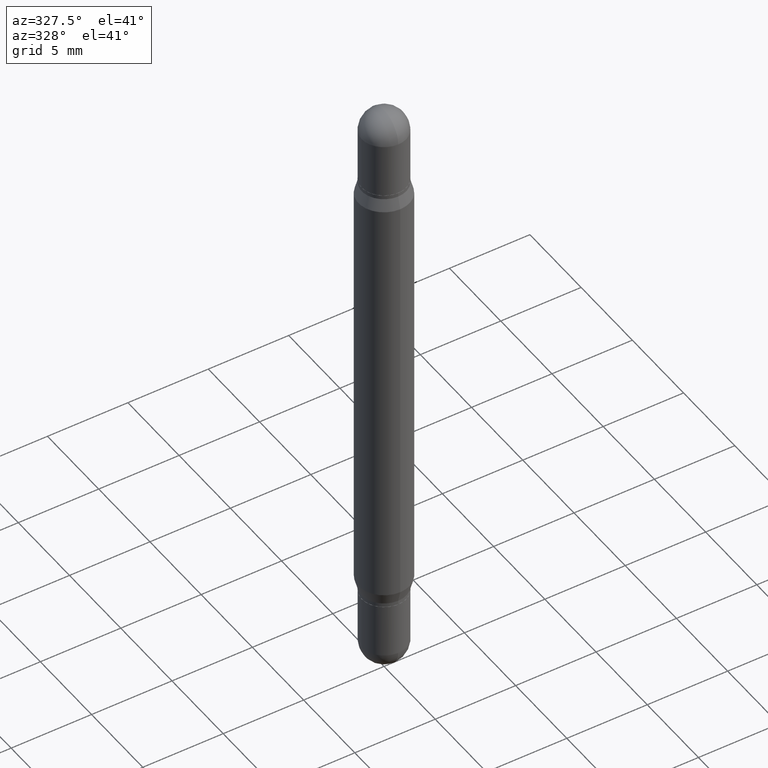
[diagram: clean part render]
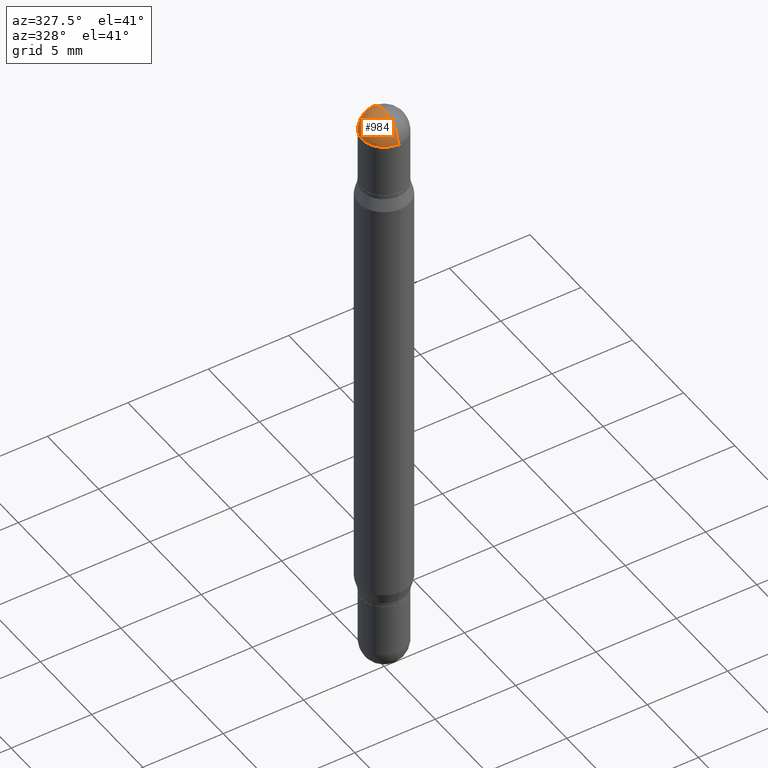
[diagram: same view with one face highlighted and labeled with its STEP entity id]
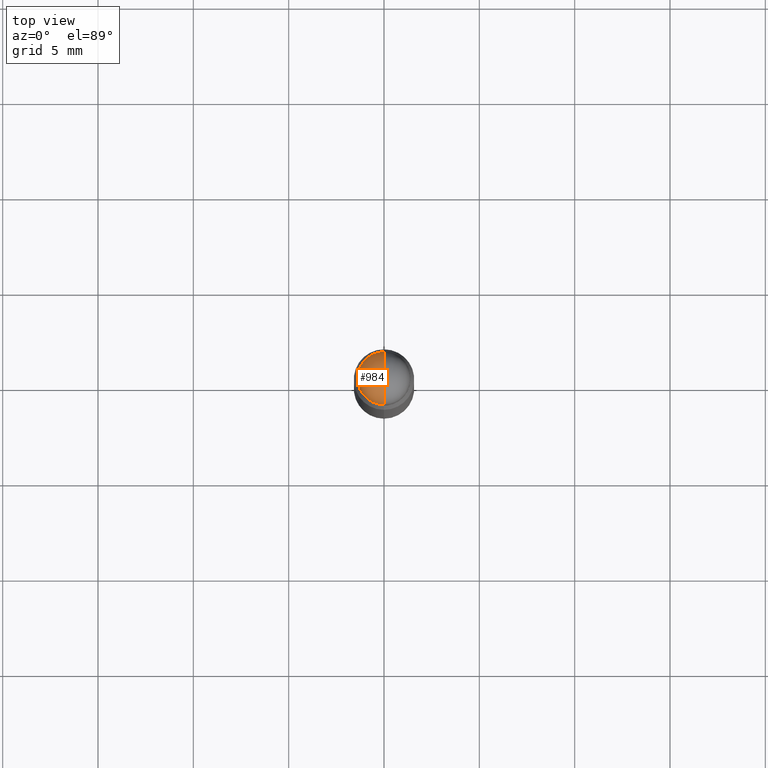
[diagram: same view with one face highlighted and labeled with its STEP entity id]
A machine part, auxiliary view. The second image highlights one B-rep face of the part: STEP entity #984.
A second angle (top view) of the same face is appended — the face is thin or edge-on in the first view.
In plain terms, the highlighted spherical surface has radius 1.3894 mm.
Its self-contained STEP definition (entity closure, byte-faithful):
#34 = AXIS2_PLACEMENT_3D ( 'NONE', #856, #1040, #943 ) ;
#53 = CIRCLE ( 'NONE', #915, 0.05470000000000019291 ) ;
#63 = EDGE_CURVE ( 'NONE', #531, #88, #1042, .T. ) ;
#77 = CARTESIAN_POINT ( 'NONE',  ( -3.819680584694040760E-16, -0.05470000000000030393, -0.05470000000000018597 ) ) ;
#78 = SPHERICAL_SURFACE ( 'NONE', #450, 0.05470000000000019291 ) ;
#88 = VERTEX_POINT ( 'NONE', #1015 ) ;
#136 = ORIENTED_EDGE ( 'NONE', *, *, #342, .T. ) ;
#168 = VERTEX_POINT ( 'NONE', #77 ) ;
#177 = EDGE_CURVE ( 'NONE', #994, #168, #53, .T. ) ;
#188 = EDGE_LOOP ( 'NONE', ( #620, #136, #687, #586 ) ) ;
#249 = CIRCLE ( 'NONE', #612, 0.05470000000000019291 ) ;
#251 = DIRECTION ( 'NONE',  ( -1.000000000000000000, 6.982962677686265922E-15, 1.566701062080020624E-31 ) ) ;
#307 = DIRECTION ( 'NONE',  ( 2.445468806185136597E-29, 3.479614466977828254E-15, 1.000000000000000000 ) ) ;
#322 = AXIS2_PLACEMENT_3D ( 'NONE', #995, #307, #1104 ) ;
#325 = CARTESIAN_POINT ( 'NONE',  ( 3.529758305977566399E-29, -2.059338832340114475E-16, -0.05470000000000037332 ) ) ;
#342 = EDGE_CURVE ( 'NONE', #994, #531, #249, .T. ) ;
#344 = EDGE_CURVE ( 'NONE', #88, #168, #395, .T. ) ;
#395 = CIRCLE ( 'NONE', #322, 0.05470000000000000556 ) ;
#421 = CARTESIAN_POINT ( 'NONE',  ( 3.661186569874987869E-29, -1.894838088599157718E-17, -1.792775245842172799E-16 ) ) ;
#425 = DIRECTION ( 'NONE',  ( -6.982962677686265922E-15, -1.000000000000000000, 3.433538383261744671E-15 ) ) ;
#441 = CARTESIAN_POINT ( 'NONE',  ( 3.529758305977566399E-29, -2.059338832340114475E-16, -0.05470000000000037332 ) ) ;
#450 = AXIS2_PLACEMENT_3D ( 'NONE', #325, #251, #425 ) ;
#531 = VERTEX_POINT ( 'NONE', #1046 ) ;
#571 = DIRECTION ( 'NONE',  ( -6.860497997771530774E-15, -1.000000000000000000, 0.000000000000000000 ) ) ;
#586 = ORIENTED_EDGE ( 'NONE', *, *, #344, .T. ) ;
#612 = AXIS2_PLACEMENT_3D ( 'NONE', #707, #653, #571 ) ;
#615 = DIRECTION ( 'NONE',  ( 6.982962677686266711E-15, 1.000000000000000000, 0.000000000000000000 ) ) ;
#620 = ORIENTED_EDGE ( 'NONE', *, *, #177, .F. ) ;
#653 = DIRECTION ( 'NONE',  ( -1.000000000000000000, 6.860497997771530774E-15, 5.827999781331232286E-31 ) ) ;
#678 = FACE_OUTER_BOUND ( 'NONE', #188, .T. ) ;
#687 = ORIENTED_EDGE ( 'NONE', *, *, #63, .T. ) ;
#707 = CARTESIAN_POINT ( 'NONE',  ( 3.529758305977566399E-29, -2.059338832340114475E-16, -0.05470000000000037332 ) ) ;
#788 = DIRECTION ( 'NONE',  ( 1.000000000000000000, -6.982962677686265922E-15, -1.566701062080016245E-31 ) ) ;
#856 = CARTESIAN_POINT ( 'NONE',  ( 3.534436065579377749E-29, -1.992350652426753183E-16, -0.05470000000000037332 ) ) ;
#915 = AXIS2_PLACEMENT_3D ( 'NONE', #441, #788, #615 ) ;
#943 = DIRECTION ( 'NONE',  ( 1.000000000000000000, -6.982962677686268288E-15, 0.000000000000000000 ) ) ;
#984 = ADVANCED_FACE ( 'NONE', ( #678 ), #78, .T. ) ;
#994 = VERTEX_POINT ( 'NONE', #421 ) ;
#995 = CARTESIAN_POINT ( 'NONE',  ( 3.534436065579377749E-29, -1.992350652426753183E-16, -0.05470000000000037332 ) ) ;
#1015 = CARTESIAN_POINT ( 'NONE',  ( -0.05470000000000000556, -5.414232175515625545E-17, -0.05470000000000037332 ) ) ;
#1040 = DIRECTION ( 'NONE',  ( 2.445468806185136597E-29, 3.479614466977828254E-15, 1.000000000000000000 ) ) ;
#1042 = CIRCLE ( 'NONE', #34, 0.05470000000000000556 ) ;
#1046 = CARTESIAN_POINT ( 'NONE',  ( 3.752692404781387717E-16, 0.05469999999999989454, -0.05470000000000056067 ) ) ;
#1104 = DIRECTION ( 'NONE',  ( 1.000000000000000000, -6.982962677686268288E-15, 0.000000000000000000 ) ) ;